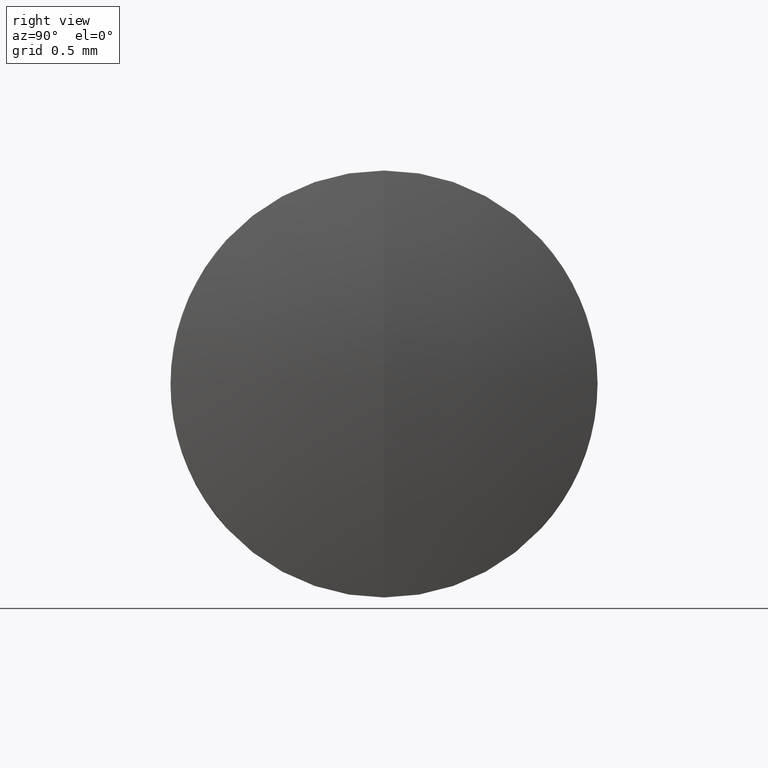
[diagram: clean part render]
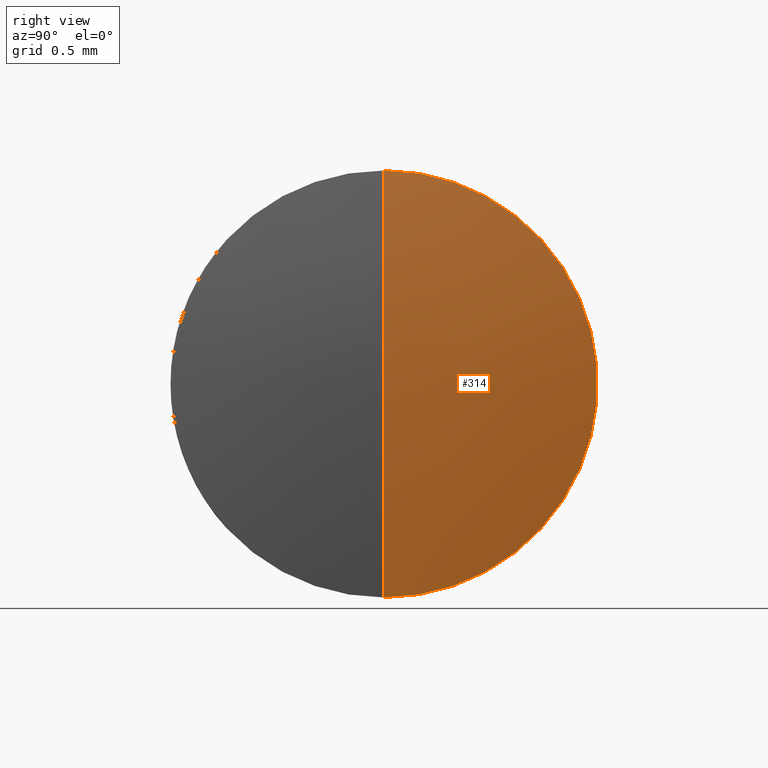
[diagram: same view with one face highlighted and labeled with its STEP entity id]
A machine part, right view. The second image highlights one B-rep face of the part: STEP entity #314.
In plain terms, the highlighted spherical surface has radius 7.96 mm.
Its self-contained STEP definition (entity closure, byte-faithful):
#8 = DIRECTION ( 'NONE',  ( 0.0000000000000000000, 1.000000000000000000, -0.0000000000000000000 ) ) ;
#10 = DIRECTION ( 'NONE',  ( 0.0000000000000000000, 1.224646799147353200E-016, -1.000000000000000000 ) ) ;
#15 = EDGE_CURVE ( 'NONE', #262, #80, #70, .T. ) ;
#21 = CARTESIAN_POINT ( 'NONE',  ( 2.825212435233174900, 0.0000000000000000000, -4.874094260606465300E-016 ) ) ;
#28 = VERTEX_POINT ( 'NONE', #146 ) ;
#31 = CARTESIAN_POINT ( 'NONE',  ( -5.134787564766825500, 0.0000000000000000000, 0.0000000000000000000 ) ) ;
#54 = DIRECTION ( 'NONE',  ( 0.0000000000000000000, 0.0000000000000000000, 1.000000000000000000 ) ) ;
#64 = ORIENTED_EDGE ( 'NONE', *, *, #168, .F. ) ;
#70 = CIRCLE ( 'NONE', #90, 7.960000000000000000 ) ;
#71 = EDGE_LOOP ( 'NONE', ( #153, #117, #64 ) ) ;
#75 = CARTESIAN_POINT ( 'NONE',  ( 2.682603304314750600, 0.0000000000000000000, 0.0000000000000000000 ) ) ;
#79 = SPHERICAL_SURFACE ( 'NONE', #283, 7.960000000000000000 ) ;
#80 = VERTEX_POINT ( 'NONE', #303 ) ;
#87 = DIRECTION ( 'NONE',  ( 0.0000000000000000000, -1.000000000000000000, -1.224646799147353200E-016 ) ) ;
#90 = AXIS2_PLACEMENT_3D ( 'NONE', #248, #87, #10 ) ;
#102 = FACE_OUTER_BOUND ( 'NONE', #71, .T. ) ;
#117 = ORIENTED_EDGE ( 'NONE', *, *, #297, .T. ) ;
#145 = DIRECTION ( 'NONE',  ( 0.0000000000000000000, 0.0000000000000000000, -1.000000000000000000 ) ) ;
#146 = CARTESIAN_POINT ( 'NONE',  ( 2.682603304314751000, 0.0000000000000000000, -1.500000000000000000 ) ) ;
#153 = ORIENTED_EDGE ( 'NONE', *, *, #15, .F. ) ;
#158 = AXIS2_PLACEMENT_3D ( 'NONE', #198, #8, #172 ) ;
#168 = EDGE_CURVE ( 'NONE', #80, #28, #319, .T. ) ;
#172 = DIRECTION ( 'NONE',  ( 0.0000000000000000000, 0.0000000000000000000, 1.000000000000000000 ) ) ;
#198 = CARTESIAN_POINT ( 'NONE',  ( -5.134787564766825500, 0.0000000000000000000, 0.0000000000000000000 ) ) ;
#237 = DIRECTION ( 'NONE',  ( -1.000000000000000000, -0.0000000000000000000, -0.0000000000000000000 ) ) ;
#248 = CARTESIAN_POINT ( 'NONE',  ( -5.134787564766825500, 0.0000000000000000000, 0.0000000000000000000 ) ) ;
#250 = AXIS2_PLACEMENT_3D ( 'NONE', #75, #237, #54 ) ;
#262 = VERTEX_POINT ( 'NONE', #21 ) ;
#283 = AXIS2_PLACEMENT_3D ( 'NONE', #31, #307, #145 ) ;
#297 = EDGE_CURVE ( 'NONE', #262, #28, #311, .T. ) ;
#303 = CARTESIAN_POINT ( 'NONE',  ( 2.682603304314751000, -1.836970198721029900E-016, 1.500000000000000000 ) ) ;
#307 = DIRECTION ( 'NONE',  ( -0.0000000000000000000, -1.000000000000000000, -0.0000000000000000000 ) ) ;
#311 = CIRCLE ( 'NONE', #158, 7.960000000000000000 ) ;
#314 = ADVANCED_FACE ( 'NONE', ( #102 ), #79, .T. ) ;
#319 = CIRCLE ( 'NONE', #250, 1.500000000000000000 ) ;